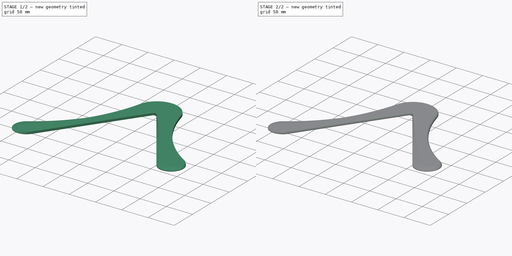
[diagram: build sequence overview — one tinted view per stage of 2, left to right]
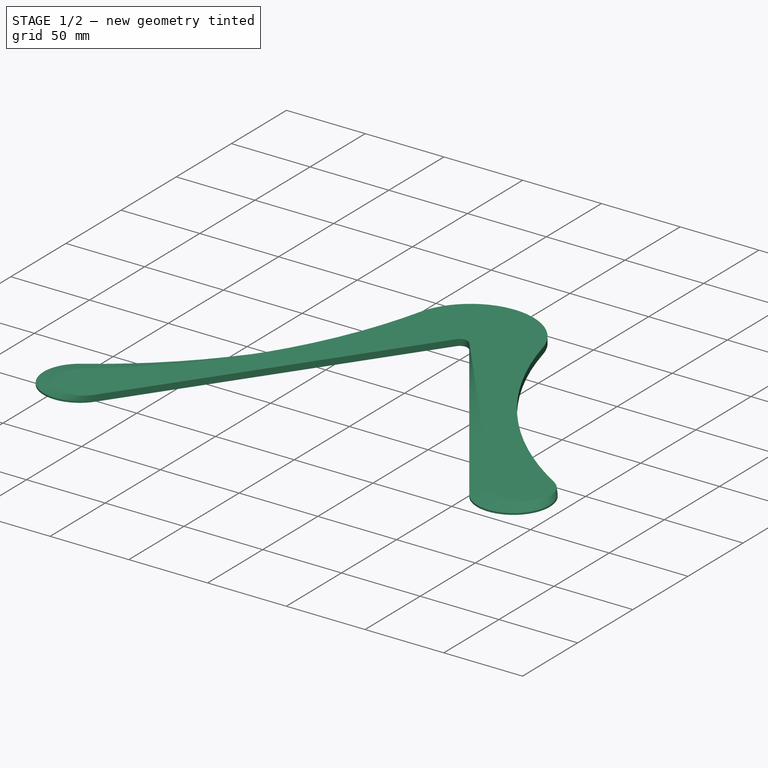
[diagram: stage 1 of 2 — iso view after this stage's code; geometry added in this stage tinted green]
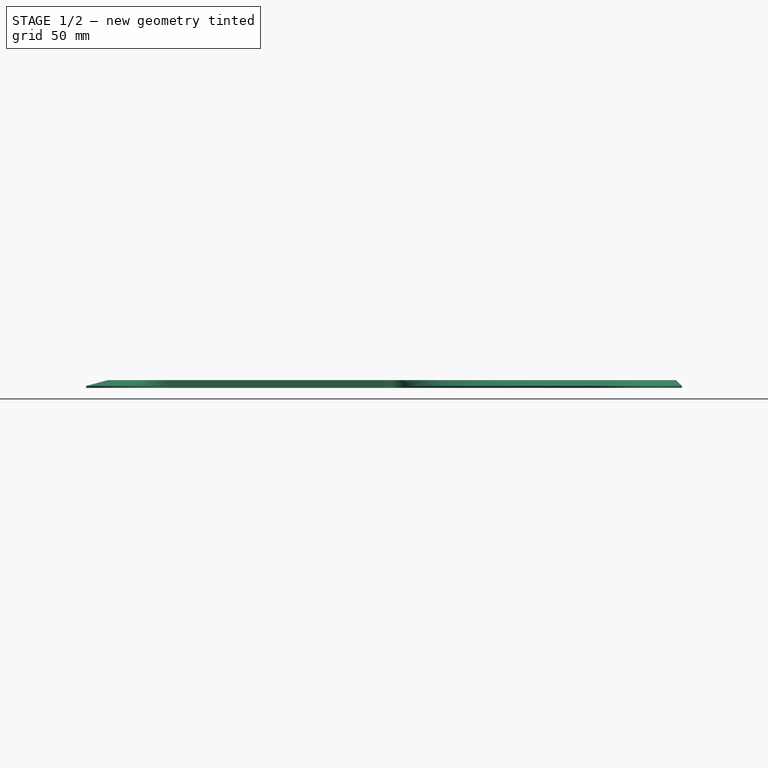
[diagram: stage 1 of 2 — front view after this stage's code; geometry added in this stage tinted green]
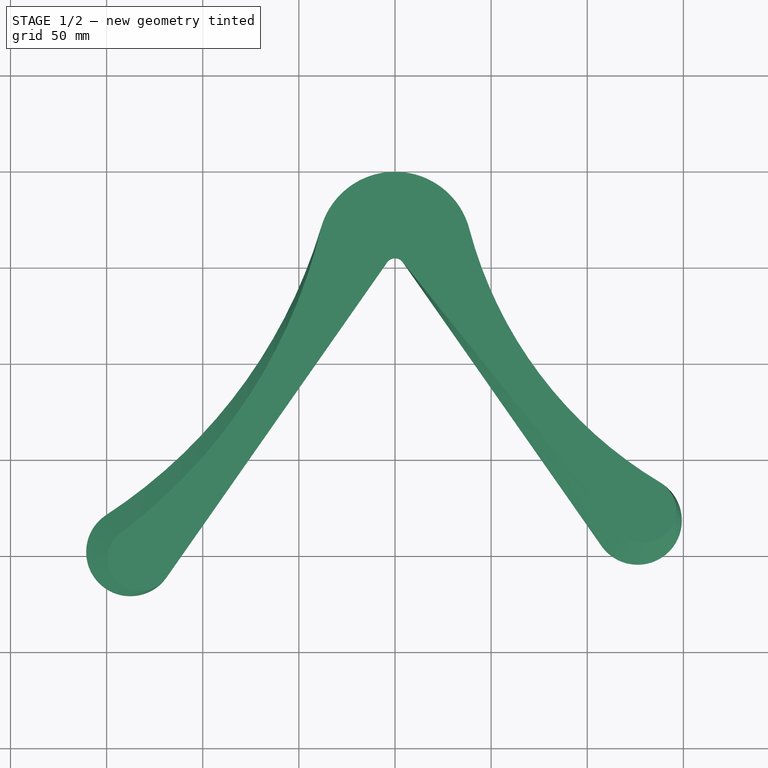
[diagram: stage 1 of 2 — top view after this stage's code; geometry added in this stage tinted green]
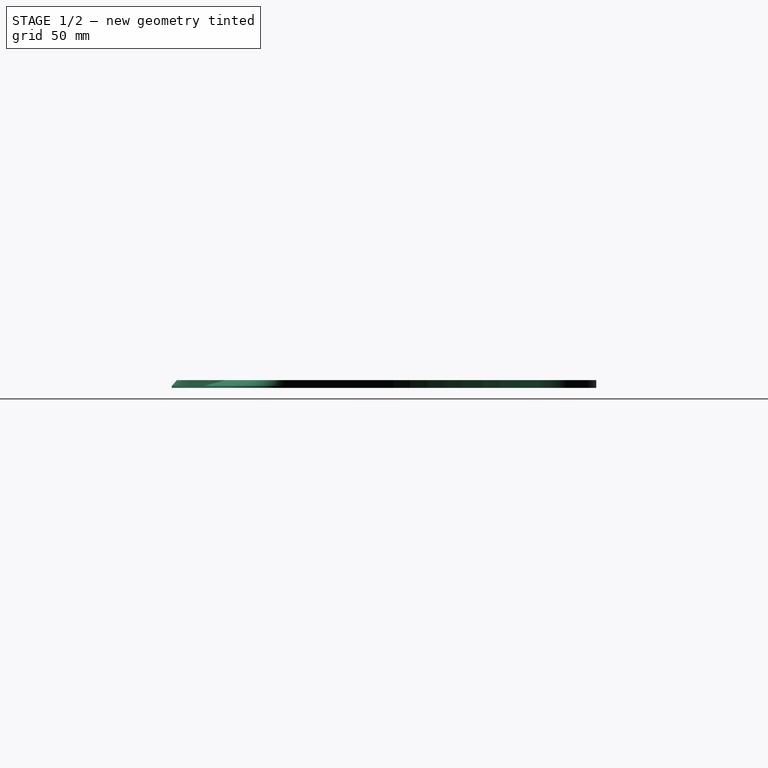
[diagram: stage 1 of 2 — right view after this stage's code; geometry added in this stage tinted green]
FCSTD DOCUMENT  (FreeCAD 1.2R46207 (Git))
Label: simple2
License: All rights reserved
LicenseURL: https://en.wikipedia.org/wiki/All_rights_reserved
objects: Sketcher::SketchObject×3, App::Point×1, App::VarSet×1, PartDesign::AdditiveLoft×1, PartDesign::Pad×1, PartDesign::Fillet×1, PartDesign::Body×1
note: 16 computed .brp shape members not serialized (recipe doc carries the construction recipe); baked Part::Feature solids carry a one-line shape summary decoded from their .brp

FEATURE [App::Point] Origin001
  Role = Origin
FEATURE [Sketcher::SketchObject] Sketch  label="Master Sketch"
  ArcFitTolerance = 1e-06
  AttachmentSupport = -> [Origin]
  ExternalTypes = [0]
  FullyConstrained = true
  MakeInternals = false
  MapMode = 5
  _ExternalGeoVersion = 1
  expr: Constraints[10] = <<Vars>>.elbow_radius
  expr: Constraints[11] = <<Vars>>.elbow_offset
  expr: Constraints[12] = <<Vars>>.elbow_inner_radius
  expr: Constraints[17] = <<Vars>>.tip_radius
  expr: Constraints[18] = <<Vars>>.dingle_length
  expr: Constraints[19] = <<Vars>>.lead_length
  expr: Constraints[20] = <<Vars>>.angle
  expr: Constraints[21] = <<Vars>>.angle / 2
  expr: Constraints[26] = <<Vars>>.width
  expr: Constraints[35] = <<Vars>>.airfoil_half_width
  expr: Constraints[36] = <<Vars>>.airfoil_width
  expr: Constraints[37] = <<Vars>>.airfoil_width
  sketch-geometry (15):
    g0: LineSegment StartX=-4.09576 StartY=2.86788 StartZ=0 EndX=-118.811 EndY=-160.963 EndZ=0
    g1: ArcOfCircle CenterX=-137.652 CenterY=-147.77 CenterZ=0 NormalX=0 NormalY=0 NormalZ=1 AngleXU=0 Radius=23 StartAngle=2.14966 EndAngle=5.67232
    g2: ArcOfCircle CenterX=-299.151 CenterY=99.3439 CenterZ=0 NormalX=0 NormalY=0 NormalZ=1 AngleXU=0 Radius=272.207 StartAngle=5.29125 EndAngle=5.99296
    g3: ArcOfCircle CenterX=0 CenterY=10 CenterZ=0 NormalX=0 NormalY=0 NormalZ=1 AngleXU=0 Radius=40 StartAngle=0.258083 EndAngle=2.85137
    g4: ArcOfCircle CenterX=249.894 CenterY=75.9644 CenterZ=0 NormalX=0 NormalY=0 NormalZ=1 AngleXU=0 Radius=218.454 StartAngle=3.39968 EndAngle=4.17445
    g5: ArcOfCircle CenterX=126.18 CenterY=-131.387 CenterZ=0 NormalX=0 NormalY=0 NormalZ=1 AngleXU=0 Radius=23 StartAngle=3.75246 EndAngle=7.31604
    g6: LineSegment StartX=107.34 StartY=-144.579 StartZ=0 EndX=4.09576 EndY=2.86788 EndZ=0
    g7: ArcOfCircle CenterX=0 CenterY=0 CenterZ=0 NormalX=0 NormalY=0 NormalZ=1 AngleXU=0 Radius=5 StartAngle=0.610865 EndAngle=2.53073
    g8: LineSegment StartX=-61.4534 StartY=-79.0473 StartZ=0 EndX=-81.9322 EndY=-64.7079 EndZ=0
    g9: LineSegment StartX=55.7176 StartY=-70.8558 StartZ=0 EndX=76.1964 EndY=-56.5164 EndZ=0
    g10: LineSegment StartX=4.09576 StartY=2.86788 StartZ=0 EndX=116.282 EndY=-136.577 EndZ=0
    g11: ArcOfCircle CenterX=129.362 CenterY=-126.053 CenterZ=0 NormalX=0 NormalY=0 NormalZ=1 AngleXU=0 Radius=16.7887 StartAngle=3.81908 EndAngle=7.31604
    g12: ArcOfCircle CenterX=-132.595 CenterY=-151.311 CenterZ=0 NormalX=0 NormalY=0 NormalZ=1 AngleXU=0 Radius=16.8269 StartAngle=2.21354 EndAngle=5.67232
    g13: ArcOfCircle CenterX=-309.998 CenterY=85.5984 CenterZ=0 NormalX=0 NormalY=0 NormalZ=1 AngleXU=0 Radius=279.143 StartAngle=5.35514 EndAngle=6.0513
    g14: GeomPoint X=-77.0142 Y=-68.1516 Z=0
  constraints (38):
    c: Tangent(g0,g1) = 1.5708
    c: Tangent(g1,g2) = 1.5708
    c: Tangent(g2,g3) = 1.5708
    c: Tangent(g3,g4) = 1.5708
    c: Tangent(g4,g5) = 1.5708
    c: Tangent(g5,g6) = 1.5708
    c: Tangent(g7,g6) = -1.5708
    c: Tangent(g7,g0) = -1.5708
    c: Coincident(g7,g-1)
    c: PointOnObject(g3,g-2)
    c: Radius(g3) = 40
    c: DistanceY(g7,g3) = 10
    c: Radius(g7) = 5
    c: PointOnObject(g8,g2)
    c: PointOnObject(g9,g4)
    c: Equal(g9,g8)
    c: Equal(g1,g5)
    c: Radius(g1) = 23
    c: Distance(g0,g0) = 200
    c: Distance(g6,g6) = 180
    c: Angle(g0,g6) = 1.22173
    c: Angle(g0,g-2) = 0.610865
    c: Symmetric(g0,g0,g8)
    c: Symmetric(g6,g5,g9)
    c: Perpendicular(g0,g8)
    c: Perpendicular(g6,g9)
    c: Distance(g8,g8) = 25
    c: Coincident(g6,g10)
    c: Tangent(g10,g11) = -1.5708
    c: Tangent(g11,g4) = 1.5708
    c: Tangent(g0,g12) = 1.5708
    c: Tangent(g12,g13) = 1.5708
    c: Coincident(g13,g2)
    c: PointOnObject(g14,g8)
    c: PointOnObject(g14,g13)
    c: Distance(g14,g2) = 6
    c: Distance(g1,g12) = 12
    c: Distance(g5,g10) = 12
FEATURE [App::VarSet] VarSet  label="Vars"
  airfoil_fillet = 2.9
  airfoil_half_width = 6
  airfoil_width = 12
  angle = 70
  bottom_thickness = 1
  dingle_length = 200
  elbow_inner_radius = 5
  elbow_offset = 10
  elbow_radius = 40
  lead_length = 180
  thickness = 4
  tip_radius = 23
  width = 25
FEATURE [Sketcher::SketchObject] Sketch001  label="Top Outline"
  ArcFitTolerance = 1e-06
  AttachmentOffset = pos=(0,0,4) rot=(0,0,1;0rad)
  AttachmentSupport = -> [Origin,XY_Plane]
  ExternalGeometry = -> [Sketch]
  ExternalTypes = [0,0,0,0,0,0,0,0]
  FullyConstrained = true
  MakeInternals = false
  MapMode = 2
  Placement = pos=(0,0,4) rot=(0,0,1;0rad)
  _ExternalGeoVersion = 1
  expr: .AttachmentOffset.Base.z = <<Vars>>.thickness
FEATURE [Sketcher::SketchObject] Sketch002  label="Bottom Outline"
  ArcFitTolerance = 1e-06
  AttachmentOffset = pos=(0,0,1) rot=(0,0,1;0rad)
  AttachmentSupport = -> [Origin,XY_Plane]
  ExternalGeometry = -> [Sketch]
  ExternalTypes = [0,0,0,0,0,0,0,0]
  FullyConstrained = true
  MakeInternals = false
  MapMode = 2
  Placement = pos=(0,0,1) rot=(0,0,1;0rad)
  _ExternalGeoVersion = 1
  expr: .AttachmentOffset.Base.z = <<Vars>>.bottom_thickness
FEATURE [PartDesign::AdditiveLoft] AdditiveLoft
  Closed = false
  Placement = pos=(0,0,1) rot=(0,0,1;0rad)
  Profile = -> Sketch002
  Refine = true
  Ruled = false
  Sections = -> [Sketch001]
  Suppressed = false
FEATURE [PartDesign::Pad] Pad
  BaseFeature = -> AdditiveLoft
  Direction = (0,0,-1)
  Length = 1
  Length2 = 10
  Placement = pos=(0,0,1) rot=(0,0,1;0rad)
  Profile = -> AdditiveLoft [Face1]
  Refine = true
  SideType = 0
  Suppressed = false
  Type = 0
  Type2 = 0
  expr: Length = <<Vars>>.bottom_thickness
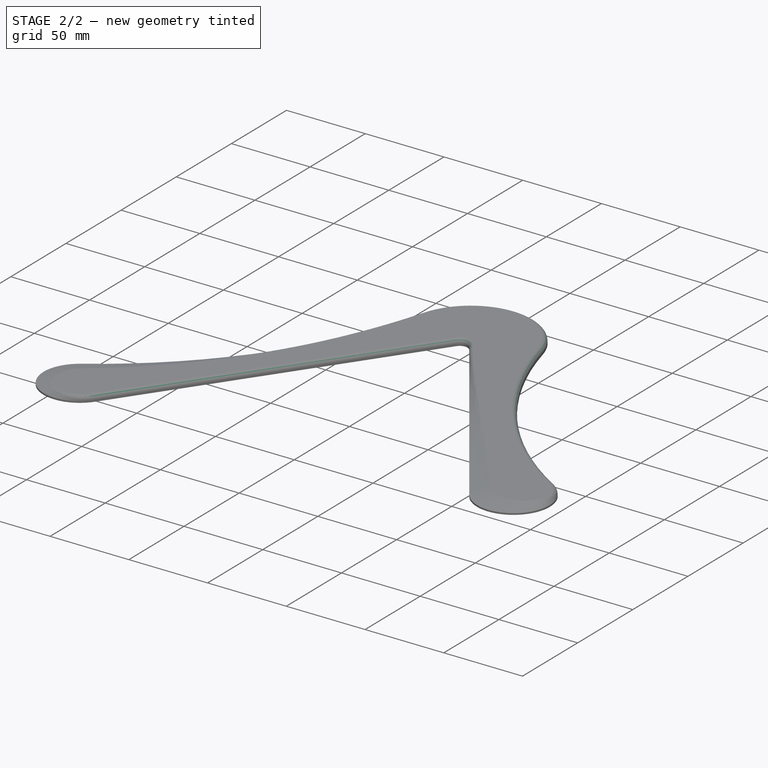
[diagram: stage 2 of 2 — iso view after this stage's code; geometry added in this stage tinted green]
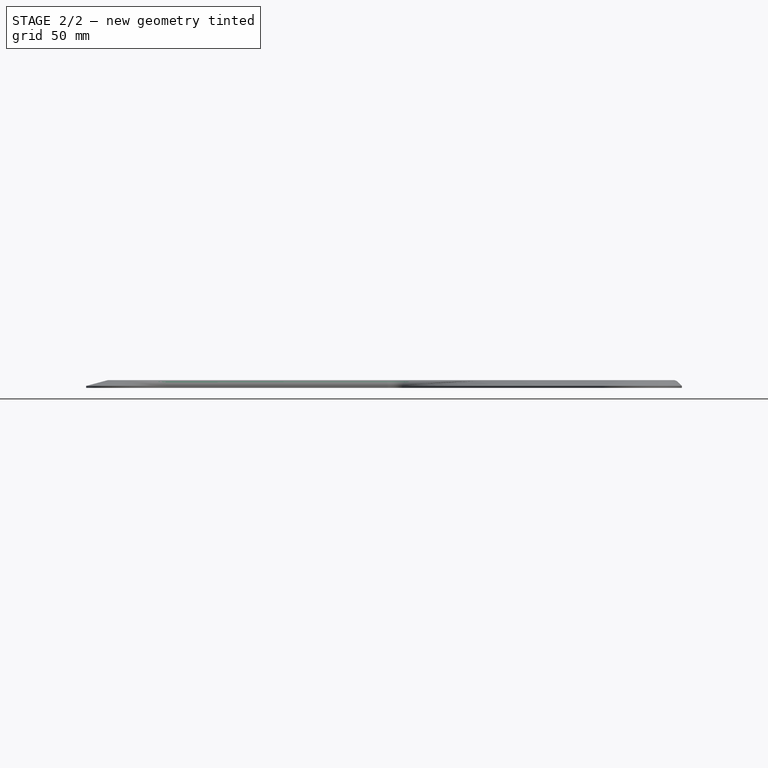
[diagram: stage 2 of 2 — front view after this stage's code; geometry added in this stage tinted green]
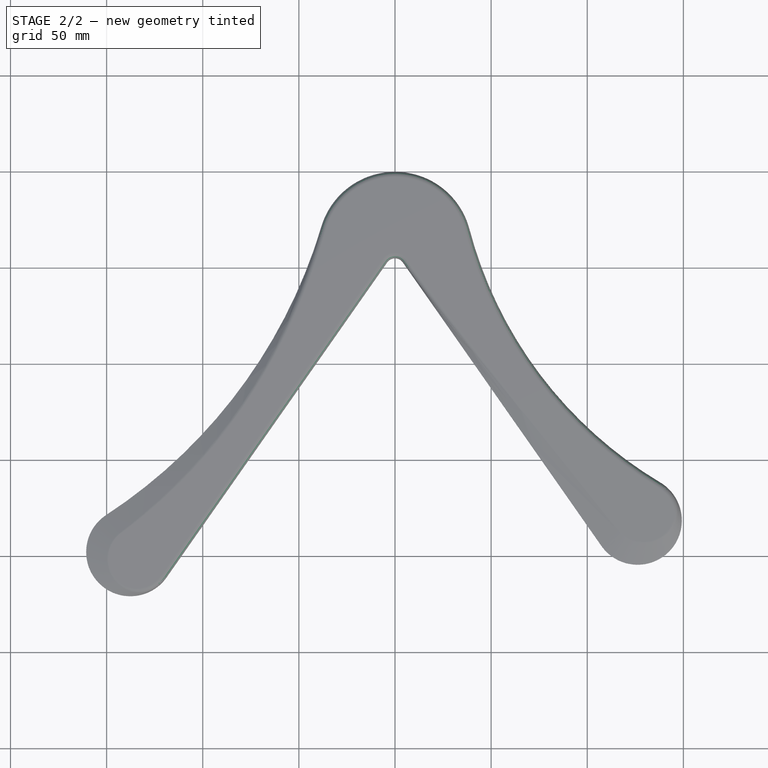
[diagram: stage 2 of 2 — top view after this stage's code; geometry added in this stage tinted green]
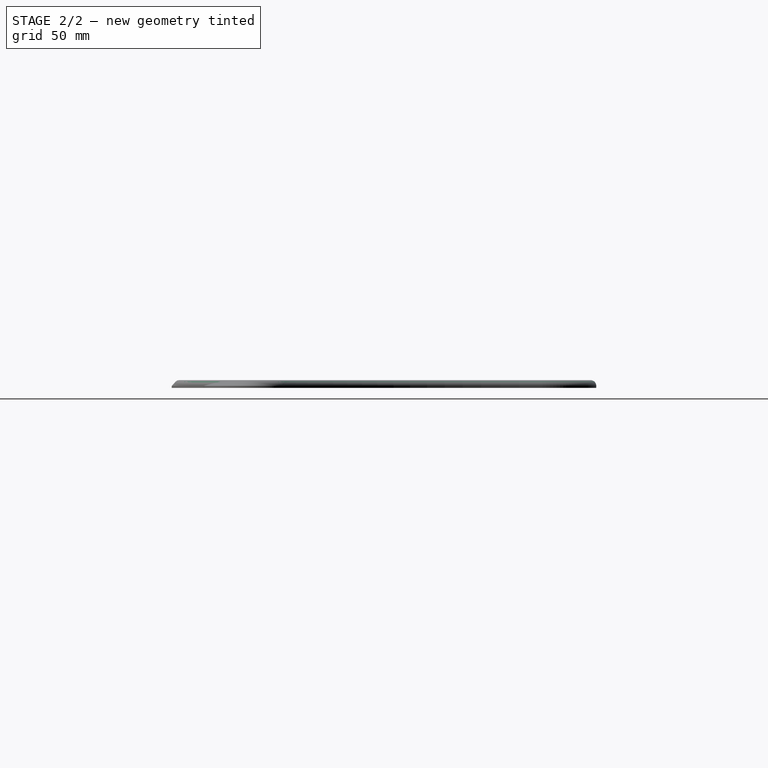
[diagram: stage 2 of 2 — right view after this stage's code; geometry added in this stage tinted green]
FEATURE [PartDesign::Fillet] Fillet
  Base = -> Pad [Face2]
  BaseFeature = -> Pad
  Placement = pos=(0,0,1) rot=(0,0,1;0rad)
  Radius = 2.9
  Refine = true
  SupportTransform = false
  Suppressed = false
  UseAllEdges = false
  expr: Radius = <<Vars>>.airfoil_fillet
FEATURE [PartDesign::Body] Body  label="Boomerang"
  AllowCompound = true
  Group = -> [Sketch,Sketch001,Sketch002,AdditiveLoft,Pad,Fillet]
  Origin = -> Origin
  Tip = -> Fillet
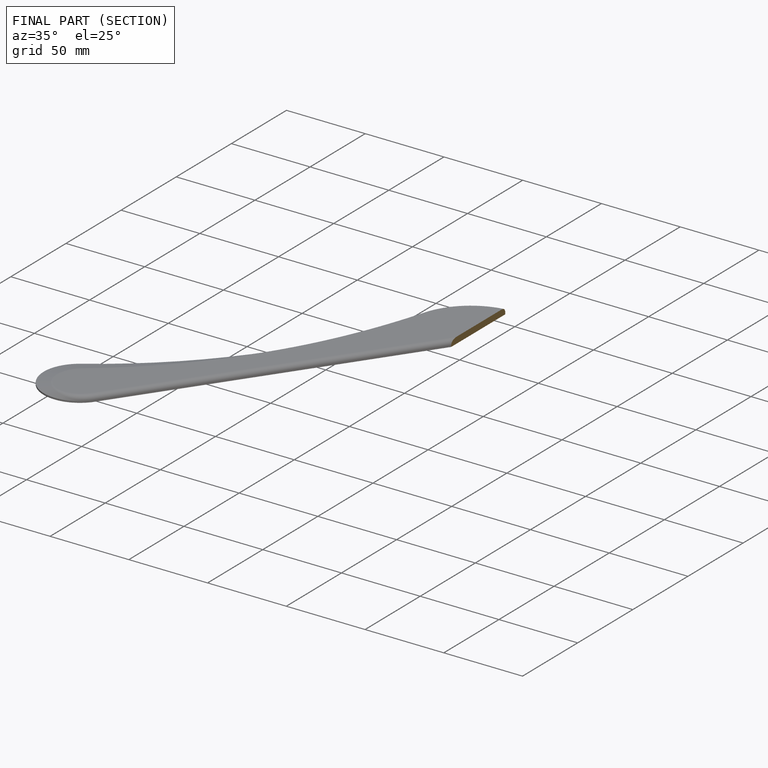
[diagram: finished part — half-section view (interior)]
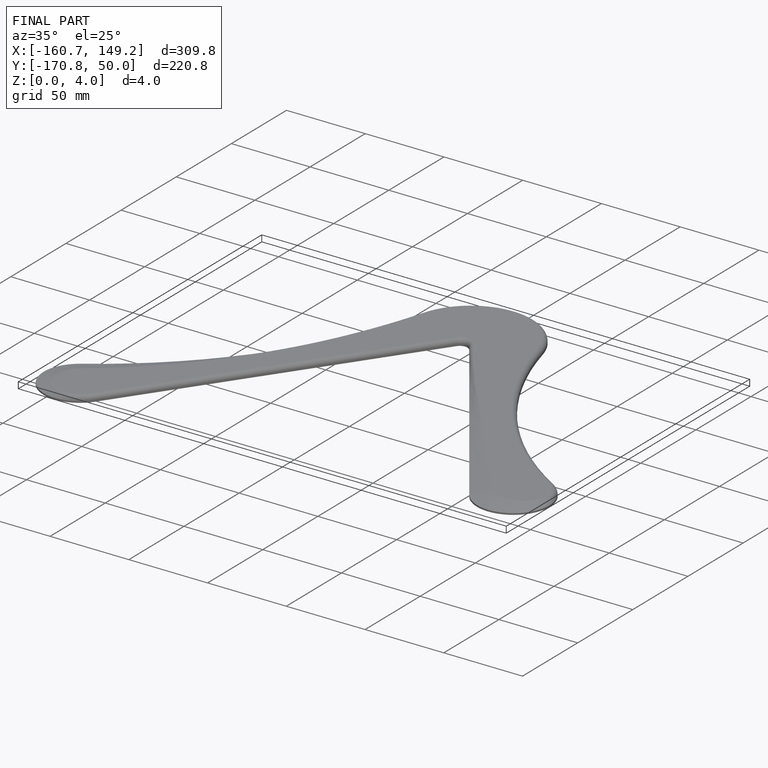
[diagram: finished part — iso view with bounding-box wireframe]
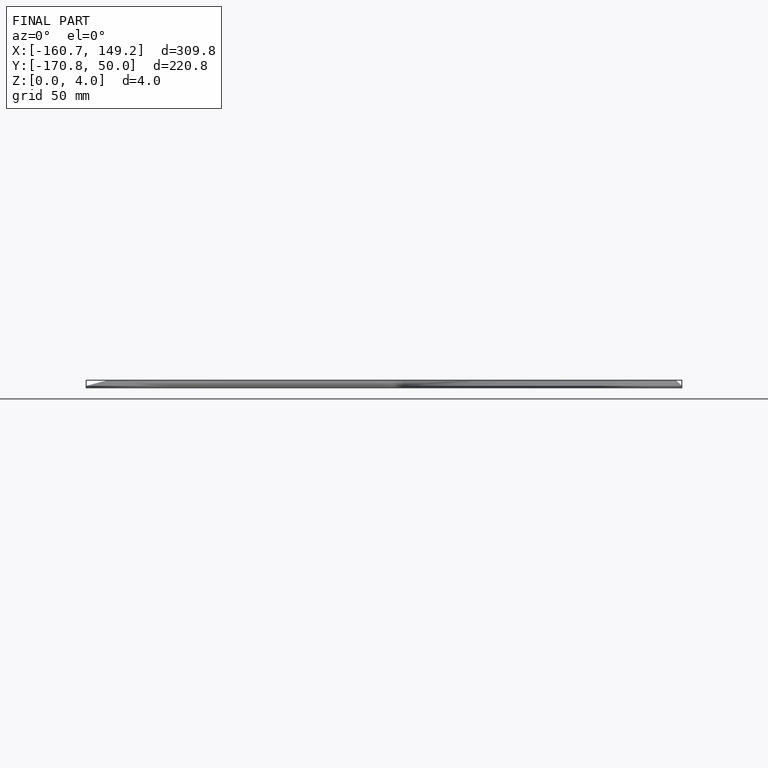
[diagram: finished part — front view with bounding-box wireframe]
